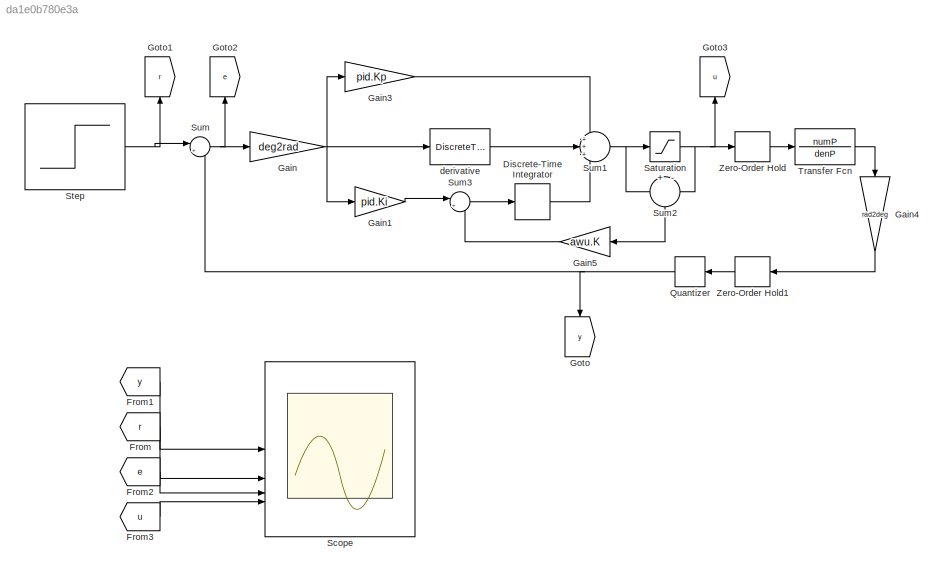
MODEL slx_da1e0b780e3a
KIND model
CONFIG AbsTol = auto
CONFIG EnableMultiTasking = off
CONFIG FixedStep = auto
CONFIG MaxStep = 0.0001
CONFIG MinStep = auto
CONFIG RelTol = 1e-3
CONFIG SampleTimeConstraint = Unconstrained
CONFIG SolverName = ode45
CONFIG StartTime = 0.0
CONFIG StopTime = 3
BLOCK [DiscreteIntegrator] Discrete-Time Integrator
  ICPrevOutput = DiscIntNeverNeededParam
  ICPrevScaledInput = DiscIntNeverNeededParam
  InitialConditionSetting = Auto
  SampleTime = Ts
BLOCK [From] From
  GotoTag = r
BLOCK [From] From1
  GotoTag = y
BLOCK [From] From2
  GotoTag = e
BLOCK [From] From3
  GotoTag = u
BLOCK [Gain] Gain
  Gain = deg2rad
BLOCK [Gain] Gain1
  Gain = pid.Ki
BLOCK [Gain] Gain3
  Gain = pid.Kp
BLOCK [Gain] Gain4
  Gain = rad2deg
  NameLocation = left
BLOCK [Gain] Gain5
  Gain = awu.K
  NameLocation = top
BLOCK [Goto] Goto
  GotoTag = y
  NameLocation = left
BLOCK [Goto] Goto1
  GotoTag = r
  NameLocation = right
BLOCK [Goto] Goto2
  GotoTag = e
  NameLocation = right
BLOCK [Goto] Goto3
  GotoTag = u
  NameLocation = right
BLOCK [Quantizer] Quantizer
  QuantizationInterval = pulse2deg
BLOCK [Saturate] Saturation
  LowerLimit = -umax
  UpperLimit = umax
BLOCK [Scope] Scope
  Floating = off
  NumInputPorts = 4
  ScopeSpecificationString = Simulink.scopes.TimeScopeBlockCfg('CurrentConfiguration', extmgr.ConfigurationSet(extmgr.Configuration('Core','General UI',true),extmgr.Configuration('Core','Source UI',true),extmgr.Configuration('Sources','WiredSimulink',true,'DataLogging',true,'DataLoggingVariableName','sim2_res','DataLoggingSaveFormat','StructureWithTime'),extmgr.Configuration('Visuals','Time Domain',true,'SerializedDisplays',{...<+3400ch>
BLOCK [Step] Step
  After = sig.A
  SampleTime = 0
  Time = sig.t
BLOCK [Sum] Sum
  Inputs = |+-
BLOCK [Sum] Sum1
  Inputs = +++
BLOCK [Sum] Sum2
  Inputs = +|-
  NameLocation = left
BLOCK [Sum] Sum3
  Inputs = |+-
  NameLocation = top
BLOCK [TransferFcn] Transfer Fcn
  Denominator = denP
  Numerator = numP
BLOCK [ZeroOrderHold] Zero-Order Hold
  SampleTime = Ts
BLOCK [ZeroOrderHold] Zero-Order Hold1
  SampleTime = Ts
BLOCK [DiscreteTransferFcn] derivative
  Denominator = denCd
  InputPortMap = u0
  Numerator = numCd
  SampleTime = Ts
LINE Discrete-Time Integrator:1 -> Sum1:3
LINE From1:1 -> Scope:1
LINE From2:1 -> Scope:3
LINE From3:1 -> Scope:4
LINE From:1 -> Scope:2
LINE Gain1:1 -> Sum3:1
LINE Gain3:1 -> Sum1:1
LINE Gain4:1 -> Zero-Order Hold1:1
LINE Gain5:1 -> Sum3:2
NET Gain:1 -> Gain1:1, Gain3:1, derivative:1
NET Quantizer:1 -> Goto:1, Sum:2
NET Saturation:1 -> Goto3:1, Sum2:2, Zero-Order Hold:1
NET Step:1 -> Goto1:1, Sum:1
NET Sum1:1 -> Saturation:1, Sum2:1
LINE Sum2:1 -> Gain5:1
LINE Sum3:1 -> Discrete-Time Integrator:1
NET Sum:1 -> Gain:1, Goto2:1
LINE Transfer Fcn:1 -> Gain4:1
LINE Zero-Order Hold1:1 -> Quantizer:1
LINE Zero-Order Hold:1 -> Transfer Fcn:1
LINE derivative:1 -> Sum1:2
note: NET lines group one-source signal fan-out (src -> all destinations, sorted); 1:1 wires keep LINE
